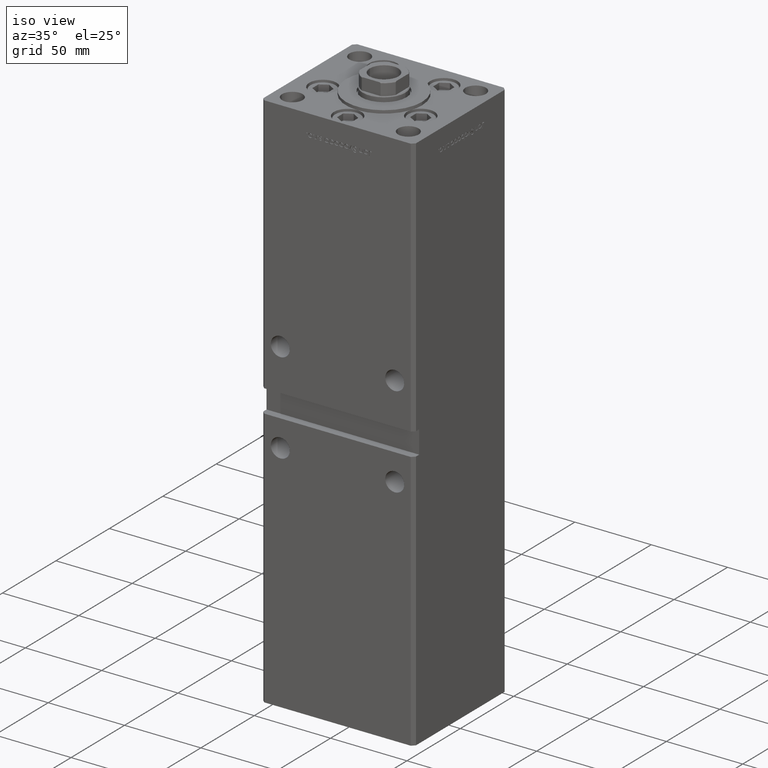
[diagram: clean part render]
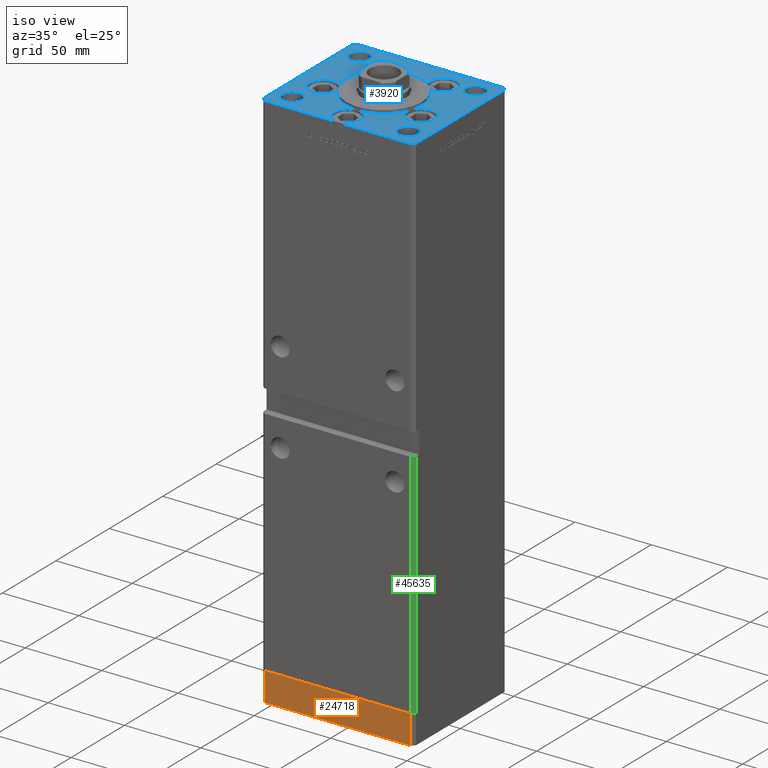
[diagram: same view with three faces highlighted in distinct colors, each labeled with its STEP entity id]
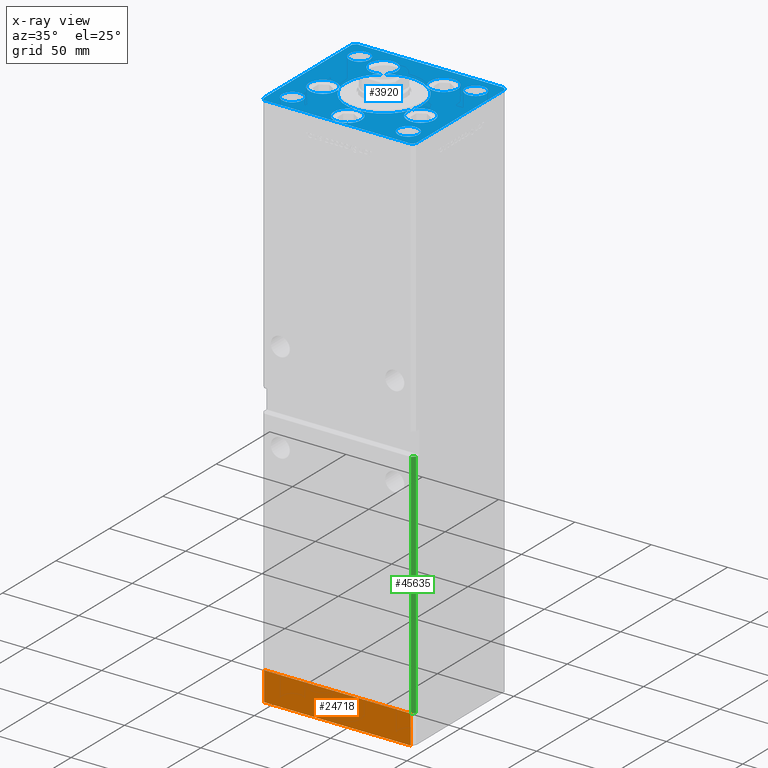
[diagram: x-ray of the same camera — body ghosted, the three highlighted faces saturated]
A machine part, iso view with three faces highlighted in distinct colors.
The next image is the same camera in x-ray (body ghosted, the three faces saturated) — at least one of them is partly hidden behind the body in this view.
Their STEP definitions:

[orange] entity #24718 — the highlighted planar face has unit normal (0, -1, -0).
#607 = VECTOR ( 'NONE', #42951, 1000.000000000000000 ) ;
#889 = VECTOR ( 'NONE', #1299, 1000.000000000000000 ) ;
#1299 = DIRECTION ( 'NONE',  ( 0.000000000000000000, 0.000000000000000000, 1.000000000000000000 ) ) ;
#2169 = CARTESIAN_POINT ( 'NONE',  ( -47.99999999999999289, -43.50000000000001421, -19.00000000000000000 ) ) ;
#2329 = DIRECTION ( 'NONE',  ( 0.000000000000000000, 0.000000000000000000, 1.000000000000000000 ) ) ;
#2706 = DIRECTION ( 'NONE',  ( 0.000000000000000000, -0.000000000000000000, -1.000000000000000000 ) ) ;
#4384 = VERTEX_POINT ( 'NONE', #30995 ) ;
#4978 = VERTEX_POINT ( 'NONE', #31591 ) ;
#6287 = EDGE_CURVE ( 'NONE', #43284, #40925, #39116, .T. ) ;
#6965 = CARTESIAN_POINT ( 'NONE',  ( -47.99999999999999289, -43.50000000000001421, 0.000000000000000000 ) ) ;
#8324 = VECTOR ( 'NONE', #20369, 1000.000000000000000 ) ;
#9655 = CARTESIAN_POINT ( 'NONE',  ( -47.99999999999999289, -43.50000000000001421, -19.00000000000000000 ) ) ;
#12457 = EDGE_CURVE ( 'NONE', #4384, #4978, #46414, .T. ) ;
#13043 = ORIENTED_EDGE ( 'NONE', *, *, #25767, .T. ) ;
#19844 = LINE ( 'NONE', #6965, #8324 ) ;
#20324 = AXIS2_PLACEMENT_3D ( 'NONE', #2169, #39498, #2706 ) ;
#20369 = DIRECTION ( 'NONE',  ( 1.000000000000000000, 0.000000000000000000, 0.000000000000000000 ) ) ;
#22161 = VECTOR ( 'NONE', #2329, 1000.000000000000000 ) ;
#22353 = FACE_OUTER_BOUND ( 'NONE', #33141, .T. ) ;
#24718 = ADVANCED_FACE ( 'NONE', ( #22353 ), #30664, .T. ) ;
#25767 = EDGE_CURVE ( 'NONE', #4384, #43284, #51289, .T. ) ;
#25867 = EDGE_CURVE ( 'NONE', #4978, #40925, #19844, .T. ) ;
#30664 = PLANE ( 'NONE',  #20324 ) ;
#30995 = CARTESIAN_POINT ( 'NONE',  ( -47.99999999999999289, -43.50000000000001421, -19.00000000000000000 ) ) ;
#31591 = CARTESIAN_POINT ( 'NONE',  ( -47.99999999999999289, -43.50000000000001421, 0.000000000000000000 ) ) ;
#32681 = ORIENTED_EDGE ( 'NONE', *, *, #6287, .T. ) ;
#33141 = EDGE_LOOP ( 'NONE', ( #40620, #36217, #13043, #32681 ) ) ;
#36217 = ORIENTED_EDGE ( 'NONE', *, *, #12457, .F. ) ;
#37908 = CARTESIAN_POINT ( 'NONE',  ( 47.99999999999999289, -43.50000000000001421, 0.000000000000000000 ) ) ;
#39116 = LINE ( 'NONE', #43155, #22161 ) ;
#39498 = DIRECTION ( 'NONE',  ( 0.000000000000000000, -1.000000000000000000, 0.000000000000000000 ) ) ;
#40620 = ORIENTED_EDGE ( 'NONE', *, *, #25867, .F. ) ;
#40925 = VERTEX_POINT ( 'NONE', #37908 ) ;
#42951 = DIRECTION ( 'NONE',  ( 1.000000000000000000, 0.000000000000000000, 0.000000000000000000 ) ) ;
#43155 = CARTESIAN_POINT ( 'NONE',  ( 47.99999999999999289, -43.50000000000001421, -19.00000000000000000 ) ) ;
#43284 = VERTEX_POINT ( 'NONE', #49249 ) ;
#46414 = LINE ( 'NONE', #9655, #889 ) ;
#47239 = CARTESIAN_POINT ( 'NONE',  ( -47.99999999999999289, -43.50000000000001421, -19.00000000000000000 ) ) ;
#49249 = CARTESIAN_POINT ( 'NONE',  ( 47.99999999999999289, -43.50000000000001421, -19.00000000000000000 ) ) ;
#51289 = LINE ( 'NONE', #47239, #607 ) ;

[blue] entity #3920 — the highlighted planar face has unit normal (0, 0, 1).
#344 = VERTEX_POINT ( 'NONE', #48858 ) ;
#379 = ORIENTED_EDGE ( 'NONE', *, *, #18493, .F. ) ;
#455 = VECTOR ( 'NONE', #24826, 1000.000000000000114 ) ;
#944 = DIRECTION ( 'NONE',  ( -1.000000000000000000, 0.000000000000000000, 0.000000000000000000 ) ) ;
#1230 = AXIS2_PLACEMENT_3D ( 'NONE', #40930, #4136, #36907 ) ;
#1635 = DIRECTION ( 'NONE',  ( 0.000000000000000000, 0.000000000000000000, 1.000000000000000000 ) ) ;
#1862 = CIRCLE ( 'NONE', #14727, 6.749999999999999112 ) ;
#2094 = DIRECTION ( 'NONE',  ( 1.000000000000000000, 1.156482317317871331E-15, 0.000000000000000000 ) ) ;
#2296 = AXIS2_PLACEMENT_3D ( 'NONE', #8044, #48326, #44563 ) ;
#2335 = EDGE_LOOP ( 'NONE', ( #52637, #31669 ) ) ;
#2369 = DIRECTION ( 'NONE',  ( 1.000000000000000000, 0.000000000000000000, 0.000000000000000000 ) ) ;
#2383 = EDGE_CURVE ( 'NONE', #6849, #37342, #50331, .T. ) ;
#2639 = FACE_BOUND ( 'NONE', #48498, .T. ) ;
#2659 = DIRECTION ( 'NONE',  ( 1.000000000000000000, 0.000000000000000000, 0.000000000000000000 ) ) ;
#2760 = EDGE_CURVE ( 'NONE', #46310, #8564, #41767, .T. ) ;
#2984 = AXIS2_PLACEMENT_3D ( 'NONE', #43667, #11192, #36146 ) ;
#3048 = EDGE_LOOP ( 'NONE', ( #50177, #36797, #5407, #46917, #9440, #45853, #13403, #30972 ) ) ;
#3114 = EDGE_CURVE ( 'NONE', #3707, #18404, #48621, .T. ) ;
#3148 = VERTEX_POINT ( 'NONE', #41571 ) ;
#3248 = VECTOR ( 'NONE', #26964, 1000.000000000000000 ) ;
#3374 = EDGE_CURVE ( 'NONE', #33976, #7527, #7459, .T. ) ;
#3707 = VERTEX_POINT ( 'NONE', #36496 ) ;
#3920 = ADVANCED_FACE ( 'NONE', ( #47224, #23864, #26826, #7471, #48278, #2639 ), #51540, .T. ) ;
#4043 = DIRECTION ( 'NONE',  ( 1.000000000000000000, 0.000000000000000000, 0.000000000000000000 ) ) ;
#4086 = VERTEX_POINT ( 'NONE', #49336 ) ;
#4132 = VERTEX_POINT ( 'NONE', #33515 ) ;
#4136 = DIRECTION ( 'NONE',  ( 0.000000000000000000, 0.000000000000000000, 1.000000000000000000 ) ) ;
#4247 = LINE ( 'NONE', #28168, #11902 ) ;
#5155 = DIRECTION ( 'NONE',  ( 1.000000000000000000, 0.000000000000000000, 0.000000000000000000 ) ) ;
#5224 = CIRCLE ( 'NONE', #24081, 9.000000000000000000 ) ;
#5407 = ORIENTED_EDGE ( 'NONE', *, *, #52080, .T. ) ;
#5499 = CARTESIAN_POINT ( 'NONE',  ( -38.00000000000000000, 31.50000000000000000, 0.000000000000000000 ) ) ;
#5675 = CARTESIAN_POINT ( 'NONE',  ( 32.05550741379015989, -11.33333333333332860, 0.000000000000000000 ) ) ;
#5771 = AXIS2_PLACEMENT_3D ( 'NONE', #9036, #28369, #21125 ) ;
#5942 = CARTESIAN_POINT ( 'NONE',  ( 50.00000000000000000, 41.50000000000000711, 0.000000000000000000 ) ) ;
#5973 = EDGE_CURVE ( 'NONE', #23836, #41104, #6568, .T. ) ;
#6098 = CARTESIAN_POINT ( 'NONE',  ( -32.05550741379015989, -11.33333333333332860, 0.000000000000000000 ) ) ;
#6144 = CARTESIAN_POINT ( 'NONE',  ( -48.00000000000000711, -43.50000000000002842, 0.000000000000000000 ) ) ;
#6259 = CARTESIAN_POINT ( 'NONE',  ( 25.00000000000000000, -3.877276906038844941E-15, 0.000000000000000000 ) ) ;
#6533 = AXIS2_PLACEMENT_3D ( 'NONE', #7860, #35786, #11099 ) ;
#6568 = LINE ( 'NONE', #48163, #8415 ) ;
#6612 = CARTESIAN_POINT ( 'NONE',  ( 0.000000000000000000, -6.938893903907228378E-15, 0.000000000000000000 ) ) ;
#6743 = ORIENTED_EDGE ( 'NONE', *, *, #32001, .F. ) ;
#6849 = VERTEX_POINT ( 'NONE', #42249 ) ;
#6880 = DIRECTION ( 'NONE',  ( 1.000000000000000000, 0.000000000000000000, 0.000000000000000000 ) ) ;
#7430 = DIRECTION ( 'NONE',  ( 1.000000000000000000, 0.000000000000000000, 0.000000000000000000 ) ) ;
#7459 = CIRCLE ( 'NONE', #5771, 6.749999999999999112 ) ;
#7471 = FACE_BOUND ( 'NONE', #2335, .T. ) ;
#7527 = VERTEX_POINT ( 'NONE', #11153 ) ;
#7715 = CARTESIAN_POINT ( 'NONE',  ( -19.82068048781374969, 27.62499999999998934, 0.000000000000000000 ) ) ;
#7791 = CARTESIAN_POINT ( 'NONE',  ( 41.05550741379015989, -11.33333333333332860, 0.000000000000000000 ) ) ;
#7860 = CARTESIAN_POINT ( 'NONE',  ( 0.000000000000000000, -6.938893903907228378E-15, 0.000000000000000000 ) ) ;
#8034 = CARTESIAN_POINT ( 'NONE',  ( 19.82068048781374969, 27.62499999999998934, 0.000000000000000000 ) ) ;
#8044 = CARTESIAN_POINT ( 'NONE',  ( 0.000000000000000000, -6.938893903907228378E-15, 0.000000000000000000 ) ) ;
#8278 = ORIENTED_EDGE ( 'NONE', *, *, #49906, .F. ) ;
#8291 = DIRECTION ( 'NONE',  ( 1.000000000000000000, 0.000000000000000000, 0.000000000000000000 ) ) ;
#8401 = AXIS2_PLACEMENT_3D ( 'NONE', #38248, #45764, #29134 ) ;
#8415 = VECTOR ( 'NONE', #22967, 1000.000000000000000 ) ;
#8564 = VERTEX_POINT ( 'NONE', #26686 ) ;
#8906 = CARTESIAN_POINT ( 'NONE',  ( 47.99999999999999289, 43.50000000000000000, 0.000000000000000000 ) ) ;
#8927 = EDGE_CURVE ( 'NONE', #33057, #16143, #9362, .T. ) ;
#9036 = CARTESIAN_POINT ( 'NONE',  ( 38.00000000000000000, 31.50000000000000000, 0.000000000000000000 ) ) ;
#9205 = AXIS2_PLACEMENT_3D ( 'NONE', #53164, #16881, #8291 ) ;
#9325 = CARTESIAN_POINT ( 'NONE',  ( 0.000000000000000000, -6.938893903907228378E-15, 0.000000000000000000 ) ) ;
#9362 = CIRCLE ( 'NONE', #46205, 9.000000000000001776 ) ;
#9440 = ORIENTED_EDGE ( 'NONE', *, *, #45243, .T. ) ;
#9467 = LINE ( 'NONE', #26097, #48322 ) ;
#9888 = VERTEX_POINT ( 'NONE', #15280 ) ;
#10308 = CIRCLE ( 'NONE', #40292, 8.999999999999998224 ) ;
#10437 = VECTOR ( 'NONE', #15589, 1000.000000000000000 ) ;
#10476 = DIRECTION ( 'NONE',  ( 0.000000000000000000, 0.000000000000000000, 1.000000000000000000 ) ) ;
#10483 = DIRECTION ( 'NONE',  ( -1.000000000000000000, 0.000000000000000000, 0.000000000000000000 ) ) ;
#10509 = CARTESIAN_POINT ( 'NONE',  ( -19.82068048781374969, 27.62499999999998934, 0.000000000000000000 ) ) ;
#11090 = CIRCLE ( 'NONE', #50554, 9.000000000000000000 ) ;
#11099 = DIRECTION ( 'NONE',  ( 1.000000000000000000, 0.000000000000000000, 0.000000000000000000 ) ) ;
#11153 = CARTESIAN_POINT ( 'NONE',  ( 44.75000000000000000, 31.50000000000000000, 0.000000000000000000 ) ) ;
#11192 = DIRECTION ( 'NONE',  ( -0.000000000000000000, -0.000000000000000000, -1.000000000000000000 ) ) ;
#11273 = VERTEX_POINT ( 'NONE', #47045 ) ;
#11402 = VERTEX_POINT ( 'NONE', #8906 ) ;
#11452 = LINE ( 'NONE', #11712, #29401 ) ;
#11572 = EDGE_CURVE ( 'NONE', #8564, #11273, #10308, .T. ) ;
#11712 = CARTESIAN_POINT ( 'NONE',  ( 50.00000000000000000, 41.50000000000000711, 0.000000000000000000 ) ) ;
#11743 = AXIS2_PLACEMENT_3D ( 'NONE', #23576, #15782, #40469 ) ;
#11902 = VECTOR ( 'NONE', #44801, 1000.000000000000000 ) ;
#11927 = DIRECTION ( 'NONE',  ( 0.000000000000000000, 0.000000000000000000, 1.000000000000000000 ) ) ;
#12009 = VERTEX_POINT ( 'NONE', #6259 ) ;
#12210 = CARTESIAN_POINT ( 'NONE',  ( 48.00000000000000711, -43.49999999999992184, 0.000000000000000000 ) ) ;
#12433 = CARTESIAN_POINT ( 'NONE',  ( 50.00000000000000000, -41.49999999999992895, 0.000000000000000000 ) ) ;
#12595 = DIRECTION ( 'NONE',  ( 0.000000000000000000, 0.000000000000000000, 1.000000000000000000 ) ) ;
#13100 = EDGE_CURVE ( 'NONE', #37342, #31369, #45455, .T. ) ;
#13187 = VERTEX_POINT ( 'NONE', #16118 ) ;
#13353 = CARTESIAN_POINT ( 'NONE',  ( 32.05550741379015989, -11.33333333333332860, 0.000000000000000000 ) ) ;
#13403 = ORIENTED_EDGE ( 'NONE', *, *, #37712, .T. ) ;
#13417 = EDGE_CURVE ( 'NONE', #13843, #4132, #27073, .T. ) ;
#13843 = VERTEX_POINT ( 'NONE', #20547 ) ;
#13862 = CIRCLE ( 'NONE', #47250, 25.00000000000000000 ) ;
#14206 = CIRCLE ( 'NONE', #21069, 25.00000000000000000 ) ;
#14482 = CARTESIAN_POINT ( 'NONE',  ( 0.000000000000000000, -6.938893903907228378E-15, 0.000000000000000000 ) ) ;
#14504 = AXIS2_PLACEMENT_3D ( 'NONE', #9325, #41252, #29179 ) ;
#14727 = AXIS2_PLACEMENT_3D ( 'NONE', #30887, #47249, #10483 ) ;
#14767 = CARTESIAN_POINT ( 'NONE',  ( -19.82068048781374969, 27.62499999999998934, 0.000000000000000000 ) ) ;
#14956 = CIRCLE ( 'NONE', #1230, 9.000000000000001776 ) ;
#15056 = LINE ( 'NONE', #44569, #10437 ) ;
#15248 = CARTESIAN_POINT ( 'NONE',  ( -25.00000000000000000, -6.938893903907228378E-15, 0.000000000000000000 ) ) ;
#15280 = CARTESIAN_POINT ( 'NONE',  ( -50.00000000000000000, -41.50000000000004263, 0.000000000000000000 ) ) ;
#15452 = EDGE_LOOP ( 'NONE', ( #28787, #28757 ) ) ;
#15589 = DIRECTION ( 'NONE',  ( -0.7071067811865536790, -0.7071067811865414665, 0.000000000000000000 ) ) ;
#15762 = DIRECTION ( 'NONE',  ( 0.000000000000000000, 0.000000000000000000, 1.000000000000000000 ) ) ;
#15782 = DIRECTION ( 'NONE',  ( 0.000000000000000000, 0.000000000000000000, 1.000000000000000000 ) ) ;
#15949 = EDGE_CURVE ( 'NONE', #23629, #3707, #24462, .T. ) ;
#16093 = EDGE_CURVE ( 'NONE', #3148, #32228, #19295, .T. ) ;
#16113 = CIRCLE ( 'NONE', #8401, 6.749999999999999112 ) ;
#16118 = CARTESIAN_POINT ( 'NONE',  ( -28.82068048781374969, 27.62499999999998934, 0.000000000000000000 ) ) ;
#16143 = VERTEX_POINT ( 'NONE', #37742 ) ;
#16359 = CARTESIAN_POINT ( 'NONE',  ( 10.82068048781375147, 27.62499999999998934, 0.000000000000000000 ) ) ;
#16881 = DIRECTION ( 'NONE',  ( 0.000000000000000000, 0.000000000000000000, 1.000000000000000000 ) ) ;
#16917 = AXIS2_PLACEMENT_3D ( 'NONE', #14482, #43192, #31912 ) ;
#16945 = ORIENTED_EDGE ( 'NONE', *, *, #39914, .T. ) ;
#17068 = DIRECTION ( 'NONE',  ( -0.000000000000000000, -0.000000000000000000, -1.000000000000000000 ) ) ;
#17217 = ORIENTED_EDGE ( 'NONE', *, *, #8927, .F. ) ;
#17409 = EDGE_CURVE ( 'NONE', #31369, #33057, #14206, .T. ) ;
#17878 = ORIENTED_EDGE ( 'NONE', *, *, #16093, .T. ) ;
#18036 = DIRECTION ( 'NONE',  ( 0.000000000000000000, 0.000000000000000000, 1.000000000000000000 ) ) ;
#18155 = DIRECTION ( 'NONE',  ( 0.000000000000000000, 0.000000000000000000, 1.000000000000000000 ) ) ;
#18404 = VERTEX_POINT ( 'NONE', #21679 ) ;
#18493 = EDGE_CURVE ( 'NONE', #12009, #8564, #29694, .T. ) ;
#18563 = CARTESIAN_POINT ( 'NONE',  ( -50.00000000000000711, 41.49999999999999289, 0.000000000000000000 ) ) ;
#18597 = CIRCLE ( 'NONE', #11743, 8.999999999999998224 ) ;
#18755 = AXIS2_PLACEMENT_3D ( 'NONE', #48243, #15762, #7430 ) ;
#19291 = DIRECTION ( 'NONE',  ( -0.000000000000000000, 0.000000000000000000, 1.000000000000000000 ) ) ;
#19295 = CIRCLE ( 'NONE', #2984, 6.749999999999999112 ) ;
#19776 = DIRECTION ( 'NONE',  ( -0.7071067811865512365, 0.7071067811865439090, 0.000000000000000000 ) ) ;
#19855 = CARTESIAN_POINT ( 'NONE',  ( 23.57022603955158502, -8.333333333333332149, 0.000000000000000000 ) ) ;
#19902 = CARTESIAN_POINT ( 'NONE',  ( -32.05550741379015989, -11.33333333333332860, 0.000000000000000000 ) ) ;
#20547 = CARTESIAN_POINT ( 'NONE',  ( -48.00000000000000711, -43.50000000000002842, 0.000000000000000000 ) ) ;
#20904 = EDGE_CURVE ( 'NONE', #33057, #12009, #50360, .T. ) ;
#20917 = VERTEX_POINT ( 'NONE', #7791 ) ;
#21069 = AXIS2_PLACEMENT_3D ( 'NONE', #22915, #30701, #30171 ) ;
#21125 = DIRECTION ( 'NONE',  ( 1.000000000000000000, 0.000000000000000000, 0.000000000000000000 ) ) ;
#21136 = CARTESIAN_POINT ( 'NONE',  ( 9.000000000000000000, -34.00000000000000000, 0.000000000000000000 ) ) ;
#21225 = CIRCLE ( 'NONE', #16917, 25.00000000000000000 ) ;
#21227 = EDGE_CURVE ( 'NONE', #11273, #46310, #18597, .T. ) ;
#21560 = ORIENTED_EDGE ( 'NONE', *, *, #13100, .F. ) ;
#21679 = CARTESIAN_POINT ( 'NONE',  ( -23.57022603955158502, -8.333333333333332149, 0.000000000000000000 ) ) ;
#22067 = CIRCLE ( 'NONE', #52075, 9.000000000000000000 ) ;
#22251 = VERTEX_POINT ( 'NONE', #18563 ) ;
#22492 = EDGE_CURVE ( 'NONE', #18404, #31369, #21225, .T. ) ;
#22819 = EDGE_CURVE ( 'NONE', #36107, #40301, #16113, .T. ) ;
#22915 = CARTESIAN_POINT ( 'NONE',  ( 0.000000000000000000, -6.938893903907228378E-15, 0.000000000000000000 ) ) ;
#22967 = DIRECTION ( 'NONE',  ( 0.000000000000000000, 1.000000000000000000, 0.000000000000000000 ) ) ;
#23174 = CARTESIAN_POINT ( 'NONE',  ( -44.75000000000000711, -31.50000000000000711, 0.000000000000000000 ) ) ;
#23304 = EDGE_LOOP ( 'NONE', ( #16945, #38046 ) ) ;
#23485 = DIRECTION ( 'NONE',  ( 1.000000000000000000, 0.000000000000000000, 0.000000000000000000 ) ) ;
#23525 = DIRECTION ( 'NONE',  ( 0.000000000000000000, 0.000000000000000000, 1.000000000000000000 ) ) ;
#23576 = CARTESIAN_POINT ( 'NONE',  ( 19.82068048781374969, 27.62499999999998934, 0.000000000000000000 ) ) ;
#23629 = VERTEX_POINT ( 'NONE', #30211 ) ;
#23717 = EDGE_CURVE ( 'NONE', #9888, #13843, #47619, .T. ) ;
#23836 = VERTEX_POINT ( 'NONE', #12433 ) ;
#23837 = DIRECTION ( 'NONE',  ( 1.000000000000000000, 0.000000000000000000, 0.000000000000000000 ) ) ;
#23864 = FACE_BOUND ( 'NONE', #23304, .T. ) ;
#23938 = DIRECTION ( 'NONE',  ( 0.000000000000000000, 0.000000000000000000, 1.000000000000000000 ) ) ;
#24081 = AXIS2_PLACEMENT_3D ( 'NONE', #50405, #18155, #29720 ) ;
#24462 = CIRCLE ( 'NONE', #25323, 9.000000000000001776 ) ;
#24804 = AXIS2_PLACEMENT_3D ( 'NONE', #13353, #29724, #49600 ) ;
#24826 = DIRECTION ( 'NONE',  ( 0.7071067811865474617, 0.7071067811865474617, 0.000000000000000000 ) ) ;
#25323 = AXIS2_PLACEMENT_3D ( 'NONE', #6098, #34307, #26246 ) ;
#25909 = CARTESIAN_POINT ( 'NONE',  ( 44.75000000000000711, -31.50000000000000711, 0.000000000000000000 ) ) ;
#26097 = CARTESIAN_POINT ( 'NONE',  ( -50.00000000000000711, 41.49999999999999289, 0.000000000000000000 ) ) ;
#26194 = AXIS2_PLACEMENT_3D ( 'NONE', #19902, #23938, #40290 ) ;
#26246 = DIRECTION ( 'NONE',  ( 1.000000000000000000, 0.000000000000000000, 0.000000000000000000 ) ) ;
#26341 = CARTESIAN_POINT ( 'NONE',  ( -31.25000000000000000, 31.50000000000000000, 0.000000000000000000 ) ) ;
#26349 = DIRECTION ( 'NONE',  ( 1.000000000000000000, 0.000000000000000000, 0.000000000000000000 ) ) ;
#26437 = EDGE_LOOP ( 'NONE', ( #50867, #28838, #34449, #29772, #379, #49555, #8278, #6743, #17217, #41627, #21560, #31917, #46654, #45881, #38399, #44565, #36188, #33799, #36717, #44489, #30425, #29494 ) ) ;
#26557 = EDGE_CURVE ( 'NONE', #13187, #28303, #22067, .T. ) ;
#26613 = AXIS2_PLACEMENT_3D ( 'NONE', #38806, #39337, #45604 ) ;
#26686 = CARTESIAN_POINT ( 'NONE',  ( 14.57402977045128623, 20.31249999999998579, 0.000000000000000000 ) ) ;
#26826 = FACE_BOUND ( 'NONE', #15452, .T. ) ;
#26964 = DIRECTION ( 'NONE',  ( 0.7071067811865487940, -0.7071067811865463515, 0.000000000000000000 ) ) ;
#27073 = LINE ( 'NONE', #6144, #45498 ) ;
#27258 = CIRCLE ( 'NONE', #34138, 9.000000000000000000 ) ;
#27750 = EDGE_CURVE ( 'NONE', #28303, #30830, #27258, .T. ) ;
#28168 = CARTESIAN_POINT ( 'NONE',  ( 47.99999999999999289, 43.50000000000000000, 0.000000000000000000 ) ) ;
#28303 = VERTEX_POINT ( 'NONE', #34549 ) ;
#28369 = DIRECTION ( 'NONE',  ( 0.000000000000000000, 0.000000000000000000, 1.000000000000000000 ) ) ;
#28757 = ORIENTED_EDGE ( 'NONE', *, *, #3374, .F. ) ;
#28787 = ORIENTED_EDGE ( 'NONE', *, *, #36042, .F. ) ;
#28819 = CARTESIAN_POINT ( 'NONE',  ( 0.000000000000000000, -34.00000000000000000, 0.000000000000000000 ) ) ;
#28838 = ORIENTED_EDGE ( 'NONE', *, *, #2760, .F. ) ;
#28991 = CARTESIAN_POINT ( 'NONE',  ( 0.000000000000000000, -34.00000000000000000, 0.000000000000000000 ) ) ;
#29060 = AXIS2_PLACEMENT_3D ( 'NONE', #32150, #31885, #23837 ) ;
#29134 = DIRECTION ( 'NONE',  ( 1.000000000000000000, 0.000000000000000000, 0.000000000000000000 ) ) ;
#29179 = DIRECTION ( 'NONE',  ( 1.000000000000000000, 0.000000000000000000, 0.000000000000000000 ) ) ;
#29401 = VECTOR ( 'NONE', #19776, 999.9999999999998863 ) ;
#29494 = ORIENTED_EDGE ( 'NONE', *, *, #27750, .F. ) ;
#29694 = CIRCLE ( 'NONE', #6533, 25.00000000000000000 ) ;
#29720 = DIRECTION ( 'NONE',  ( 1.000000000000000000, 0.000000000000000000, 0.000000000000000000 ) ) ;
#29724 = DIRECTION ( 'NONE',  ( 0.000000000000000000, 0.000000000000000000, 1.000000000000000000 ) ) ;
#29772 = ORIENTED_EDGE ( 'NONE', *, *, #11572, .F. ) ;
#30028 = EDGE_CURVE ( 'NONE', #11402, #344, #4247, .T. ) ;
#30171 = DIRECTION ( 'NONE',  ( 1.000000000000000000, 0.000000000000000000, 0.000000000000000000 ) ) ;
#30211 = CARTESIAN_POINT ( 'NONE',  ( -41.05550741379015989, -11.33333333333332682, 0.000000000000000000 ) ) ;
#30281 = EDGE_CURVE ( 'NONE', #37089, #18404, #50509, .T. ) ;
#30425 = ORIENTED_EDGE ( 'NONE', *, *, #31097, .F. ) ;
#30701 = DIRECTION ( 'NONE',  ( 0.000000000000000000, 0.000000000000000000, 1.000000000000000000 ) ) ;
#30830 = VERTEX_POINT ( 'NONE', #41050 ) ;
#30887 = CARTESIAN_POINT ( 'NONE',  ( 38.00000000000000711, -31.50000000000000711, 0.000000000000000000 ) ) ;
#30972 = ORIENTED_EDGE ( 'NONE', *, *, #48222, .T. ) ;
#31097 = EDGE_CURVE ( 'NONE', #30830, #13187, #11090, .T. ) ;
#31124 = EDGE_CURVE ( 'NONE', #40301, #36107, #39366, .T. ) ;
#31163 = EDGE_CURVE ( 'NONE', #28303, #37089, #41083, .T. ) ;
#31369 = VERTEX_POINT ( 'NONE', #32083 ) ;
#31409 = DIRECTION ( 'NONE',  ( -1.000000000000000000, 0.000000000000000000, 0.000000000000000000 ) ) ;
#31528 = CARTESIAN_POINT ( 'NONE',  ( -50.00000000000000000, -41.50000000000004263, 0.000000000000000000 ) ) ;
#31669 = ORIENTED_EDGE ( 'NONE', *, *, #31124, .F. ) ;
#31885 = DIRECTION ( 'NONE',  ( 0.000000000000000000, 0.000000000000000000, 1.000000000000000000 ) ) ;
#31912 = DIRECTION ( 'NONE',  ( 1.000000000000000000, 0.000000000000000000, 0.000000000000000000 ) ) ;
#31917 = ORIENTED_EDGE ( 'NONE', *, *, #2383, .F. ) ;
#32001 = EDGE_CURVE ( 'NONE', #16143, #20917, #47952, .T. ) ;
#32083 = CARTESIAN_POINT ( 'NONE',  ( 0.000000000000000000, -25.00000000000000000, 0.000000000000000000 ) ) ;
#32150 = CARTESIAN_POINT ( 'NONE',  ( -38.00000000000000711, -31.50000000000000711, 0.000000000000000000 ) ) ;
#32228 = VERTEX_POINT ( 'NONE', #25909 ) ;
#33057 = VERTEX_POINT ( 'NONE', #19855 ) ;
#33485 = CIRCLE ( 'NONE', #26613, 6.749999999999999112 ) ;
#33503 = AXIS2_PLACEMENT_3D ( 'NONE', #28991, #48872, #37041 ) ;
#33515 = CARTESIAN_POINT ( 'NONE',  ( 48.00000000000000711, -43.49999999999992184, 0.000000000000000000 ) ) ;
#33799 = ORIENTED_EDGE ( 'NONE', *, *, #30281, .F. ) ;
#33976 = VERTEX_POINT ( 'NONE', #53173 ) ;
#34138 = AXIS2_PLACEMENT_3D ( 'NONE', #10509, #1635, #26349 ) ;
#34307 = DIRECTION ( 'NONE',  ( 0.000000000000000000, 0.000000000000000000, 1.000000000000000000 ) ) ;
#34449 = ORIENTED_EDGE ( 'NONE', *, *, #21227, .F. ) ;
#34549 = CARTESIAN_POINT ( 'NONE',  ( -14.57402977045128978, 20.31249999999999289, 0.000000000000000000 ) ) ;
#35786 = DIRECTION ( 'NONE',  ( 0.000000000000000000, 0.000000000000000000, 1.000000000000000000 ) ) ;
#36026 = CARTESIAN_POINT ( 'NONE',  ( 19.82068048781374969, 27.62499999999998934, 0.000000000000000000 ) ) ;
#36042 = EDGE_CURVE ( 'NONE', #7527, #33976, #33485, .T. ) ;
#36107 = VERTEX_POINT ( 'NONE', #47643 ) ;
#36146 = DIRECTION ( 'NONE',  ( -1.000000000000000000, 0.000000000000000000, 0.000000000000000000 ) ) ;
#36188 = ORIENTED_EDGE ( 'NONE', *, *, #51220, .F. ) ;
#36496 = CARTESIAN_POINT ( 'NONE',  ( -23.05550741379015633, -11.33333333333332860, 0.000000000000000000 ) ) ;
#36712 = VERTEX_POINT ( 'NONE', #26341 ) ;
#36717 = ORIENTED_EDGE ( 'NONE', *, *, #31163, .F. ) ;
#36797 = ORIENTED_EDGE ( 'NONE', *, *, #13417, .T. ) ;
#36907 = DIRECTION ( 'NONE',  ( 1.000000000000000000, 0.000000000000000000, 0.000000000000000000 ) ) ;
#37016 = AXIS2_PLACEMENT_3D ( 'NONE', #51826, #48565, #31409 ) ;
#37041 = DIRECTION ( 'NONE',  ( 1.000000000000000000, 0.000000000000000000, 0.000000000000000000 ) ) ;
#37089 = VERTEX_POINT ( 'NONE', #15248 ) ;
#37161 = LINE ( 'NONE', #12210, #455 ) ;
#37327 = EDGE_CURVE ( 'NONE', #31369, #6849, #5224, .T. ) ;
#37342 = VERTEX_POINT ( 'NONE', #21136 ) ;
#37712 = EDGE_CURVE ( 'NONE', #344, #22251, #15056, .T. ) ;
#37742 = CARTESIAN_POINT ( 'NONE',  ( 23.05550741379015633, -11.33333333333332682, 0.000000000000000000 ) ) ;
#38046 = ORIENTED_EDGE ( 'NONE', *, *, #38304, .T. ) ;
#38248 = CARTESIAN_POINT ( 'NONE',  ( -38.00000000000000711, -31.50000000000000711, 0.000000000000000000 ) ) ;
#38304 = EDGE_CURVE ( 'NONE', #4086, #36712, #40429, .T. ) ;
#38399 = ORIENTED_EDGE ( 'NONE', *, *, #3114, .F. ) ;
#38806 = CARTESIAN_POINT ( 'NONE',  ( 38.00000000000000000, 31.50000000000000000, 0.000000000000000000 ) ) ;
#39157 = CARTESIAN_POINT ( 'NONE',  ( 0.000000000000000000, 0.000000000000000000, 0.000000000000000000 ) ) ;
#39337 = DIRECTION ( 'NONE',  ( 0.000000000000000000, 0.000000000000000000, 1.000000000000000000 ) ) ;
#39366 = CIRCLE ( 'NONE', #29060, 6.749999999999999112 ) ;
#39818 = EDGE_CURVE ( 'NONE', #32228, #3148, #1862, .T. ) ;
#39914 = EDGE_CURVE ( 'NONE', #36712, #4086, #45601, .T. ) ;
#40290 = DIRECTION ( 'NONE',  ( 1.000000000000000000, 0.000000000000000000, 0.000000000000000000 ) ) ;
#40292 = AXIS2_PLACEMENT_3D ( 'NONE', #8034, #12595, #44811 ) ;
#40301 = VERTEX_POINT ( 'NONE', #23174 ) ;
#40429 = CIRCLE ( 'NONE', #41283, 6.749999999999999112 ) ;
#40457 = DIRECTION ( 'NONE',  ( 1.000000000000000000, 0.000000000000000000, 0.000000000000000000 ) ) ;
#40469 = DIRECTION ( 'NONE',  ( 1.000000000000000000, 0.000000000000000000, 0.000000000000000000 ) ) ;
#40930 = CARTESIAN_POINT ( 'NONE',  ( 32.05550741379015989, -11.33333333333332860, 0.000000000000000000 ) ) ;
#41050 = CARTESIAN_POINT ( 'NONE',  ( -10.82068048781375147, 27.62499999999998934, 0.000000000000000000 ) ) ;
#41083 = CIRCLE ( 'NONE', #14504, 25.00000000000000000 ) ;
#41104 = VERTEX_POINT ( 'NONE', #5942 ) ;
#41252 = DIRECTION ( 'NONE',  ( 0.000000000000000000, 0.000000000000000000, 1.000000000000000000 ) ) ;
#41283 = AXIS2_PLACEMENT_3D ( 'NONE', #5499, #17068, #944 ) ;
#41571 = CARTESIAN_POINT ( 'NONE',  ( 31.25000000000000711, -31.50000000000000711, 0.000000000000000000 ) ) ;
#41627 = ORIENTED_EDGE ( 'NONE', *, *, #17409, .F. ) ;
#41767 = CIRCLE ( 'NONE', #52088, 8.999999999999998224 ) ;
#42249 = CARTESIAN_POINT ( 'NONE',  ( -9.000000000000000000, -34.00000000000000000, 0.000000000000000000 ) ) ;
#42368 = EDGE_CURVE ( 'NONE', #8564, #28303, #13862, .T. ) ;
#43192 = DIRECTION ( 'NONE',  ( 0.000000000000000000, 0.000000000000000000, 1.000000000000000000 ) ) ;
#43667 = CARTESIAN_POINT ( 'NONE',  ( 38.00000000000000711, -31.50000000000000711, 0.000000000000000000 ) ) ;
#44325 = AXIS2_PLACEMENT_3D ( 'NONE', #28819, #11927, #23485 ) ;
#44489 = ORIENTED_EDGE ( 'NONE', *, *, #26557, .F. ) ;
#44490 = DIRECTION ( 'NONE',  ( 0.000000000000000000, 0.000000000000000000, 1.000000000000000000 ) ) ;
#44563 = DIRECTION ( 'NONE',  ( 1.000000000000000000, 0.000000000000000000, 0.000000000000000000 ) ) ;
#44565 = ORIENTED_EDGE ( 'NONE', *, *, #15949, .F. ) ;
#44569 = CARTESIAN_POINT ( 'NONE',  ( -48.00000000000000000, 43.49999999999997158, 0.000000000000000000 ) ) ;
#44801 = DIRECTION ( 'NONE',  ( -1.000000000000000000, -2.891205793294678326E-16, 0.000000000000000000 ) ) ;
#44811 = DIRECTION ( 'NONE',  ( 1.000000000000000000, 0.000000000000000000, 0.000000000000000000 ) ) ;
#45243 = EDGE_CURVE ( 'NONE', #41104, #11402, #11452, .T. ) ;
#45455 = CIRCLE ( 'NONE', #33503, 9.000000000000000000 ) ;
#45498 = VECTOR ( 'NONE', #2094, 1000.000000000000000 ) ;
#45601 = CIRCLE ( 'NONE', #37016, 6.749999999999999112 ) ;
#45604 = DIRECTION ( 'NONE',  ( 1.000000000000000000, 0.000000000000000000, 0.000000000000000000 ) ) ;
#45764 = DIRECTION ( 'NONE',  ( 0.000000000000000000, 0.000000000000000000, 1.000000000000000000 ) ) ;
#45853 = ORIENTED_EDGE ( 'NONE', *, *, #30028, .T. ) ;
#45881 = ORIENTED_EDGE ( 'NONE', *, *, #22492, .F. ) ;
#45917 = ORIENTED_EDGE ( 'NONE', *, *, #39818, .T. ) ;
#46205 = AXIS2_PLACEMENT_3D ( 'NONE', #5675, #18036, #5155 ) ;
#46310 = VERTEX_POINT ( 'NONE', #16359 ) ;
#46654 = ORIENTED_EDGE ( 'NONE', *, *, #37327, .F. ) ;
#46917 = ORIENTED_EDGE ( 'NONE', *, *, #5973, .T. ) ;
#47045 = CARTESIAN_POINT ( 'NONE',  ( 28.82068048781374969, 27.62499999999998934, 0.000000000000000000 ) ) ;
#47224 = FACE_BOUND ( 'NONE', #26437, .T. ) ;
#47249 = DIRECTION ( 'NONE',  ( -0.000000000000000000, -0.000000000000000000, -1.000000000000000000 ) ) ;
#47250 = AXIS2_PLACEMENT_3D ( 'NONE', #6612, #23525, #6880 ) ;
#47619 = LINE ( 'NONE', #31528, #3248 ) ;
#47643 = CARTESIAN_POINT ( 'NONE',  ( -31.25000000000000711, -31.50000000000000711, 0.000000000000000000 ) ) ;
#47952 = CIRCLE ( 'NONE', #24804, 9.000000000000001776 ) ;
#48163 = CARTESIAN_POINT ( 'NONE',  ( 50.00000000000000000, -41.49999999999992895, 0.000000000000000000 ) ) ;
#48222 = EDGE_CURVE ( 'NONE', #22251, #9888, #9467, .T. ) ;
#48243 = CARTESIAN_POINT ( 'NONE',  ( 0.000000000000000000, -6.938893903907228378E-15, 0.000000000000000000 ) ) ;
#48278 = FACE_OUTER_BOUND ( 'NONE', #3048, .T. ) ;
#48322 = VECTOR ( 'NONE', #50546, 1000.000000000000000 ) ;
#48326 = DIRECTION ( 'NONE',  ( 0.000000000000000000, 0.000000000000000000, 1.000000000000000000 ) ) ;
#48498 = EDGE_LOOP ( 'NONE', ( #45917, #17878 ) ) ;
#48565 = DIRECTION ( 'NONE',  ( -0.000000000000000000, -0.000000000000000000, -1.000000000000000000 ) ) ;
#48621 = CIRCLE ( 'NONE', #9205, 9.000000000000001776 ) ;
#48858 = CARTESIAN_POINT ( 'NONE',  ( -48.00000000000000000, 43.49999999999997158, 0.000000000000000000 ) ) ;
#48872 = DIRECTION ( 'NONE',  ( 0.000000000000000000, 0.000000000000000000, 1.000000000000000000 ) ) ;
#49336 = CARTESIAN_POINT ( 'NONE',  ( -44.75000000000000000, 31.50000000000000000, 0.000000000000000000 ) ) ;
#49555 = ORIENTED_EDGE ( 'NONE', *, *, #20904, .F. ) ;
#49600 = DIRECTION ( 'NONE',  ( 1.000000000000000000, 0.000000000000000000, 0.000000000000000000 ) ) ;
#49906 = EDGE_CURVE ( 'NONE', #20917, #33057, #14956, .T. ) ;
#50177 = ORIENTED_EDGE ( 'NONE', *, *, #23717, .T. ) ;
#50331 = CIRCLE ( 'NONE', #44325, 9.000000000000000000 ) ;
#50360 = CIRCLE ( 'NONE', #2296, 25.00000000000000000 ) ;
#50405 = CARTESIAN_POINT ( 'NONE',  ( 0.000000000000000000, -34.00000000000000000, 0.000000000000000000 ) ) ;
#50414 = AXIS2_PLACEMENT_3D ( 'NONE', #39157, #19291, #2369 ) ;
#50509 = CIRCLE ( 'NONE', #18755, 25.00000000000000000 ) ;
#50546 = DIRECTION ( 'NONE',  ( 8.360113137237620037E-17, -1.000000000000000000, 0.000000000000000000 ) ) ;
#50554 = AXIS2_PLACEMENT_3D ( 'NONE', #7715, #44490, #40457 ) ;
#50867 = ORIENTED_EDGE ( 'NONE', *, *, #42368, .F. ) ;
#51220 = EDGE_CURVE ( 'NONE', #18404, #23629, #52811, .T. ) ;
#51540 = PLANE ( 'NONE',  #50414 ) ;
#51826 = CARTESIAN_POINT ( 'NONE',  ( -38.00000000000000000, 31.50000000000000000, 0.000000000000000000 ) ) ;
#52075 = AXIS2_PLACEMENT_3D ( 'NONE', #14767, #10476, #2659 ) ;
#52080 = EDGE_CURVE ( 'NONE', #4132, #23836, #37161, .T. ) ;
#52088 = AXIS2_PLACEMENT_3D ( 'NONE', #36026, #52961, #4043 ) ;
#52637 = ORIENTED_EDGE ( 'NONE', *, *, #22819, .F. ) ;
#52811 = CIRCLE ( 'NONE', #26194, 9.000000000000001776 ) ;
#52961 = DIRECTION ( 'NONE',  ( 0.000000000000000000, 0.000000000000000000, 1.000000000000000000 ) ) ;
#53164 = CARTESIAN_POINT ( 'NONE',  ( -32.05550741379015989, -11.33333333333332860, 0.000000000000000000 ) ) ;
#53173 = CARTESIAN_POINT ( 'NONE',  ( 31.25000000000000000, 31.50000000000000000, 0.000000000000000000 ) ) ;

[green] entity #45635 — the highlighted planar face has unit normal (0.7071, -0.7071, 0).
#4 = CARTESIAN_POINT ( 'NONE',  ( 50.00000000000000000, -41.49999999999999289, 152.0000000000000000 ) ) ;
#1098 = LINE ( 'NONE', #5394, #3284 ) ;
#3284 = VECTOR ( 'NONE', #21797, 1000.000000000000000 ) ;
#4098 = CARTESIAN_POINT ( 'NONE',  ( 49.99999999999998579, -41.49999999999999289, 318.5000000000000000 ) ) ;
#5394 = CARTESIAN_POINT ( 'NONE',  ( 47.99999999999998579, -43.50000000000000000, 318.5000000000000000 ) ) ;
#5868 = VECTOR ( 'NONE', #50387, 1000.000000000000114 ) ;
#6273 = VERTEX_POINT ( 'NONE', #21723 ) ;
#7084 = EDGE_CURVE ( 'NONE', #25607, #29399, #28248, .T. ) ;
#7316 = LINE ( 'NONE', #39795, #36739 ) ;
#7818 = EDGE_CURVE ( 'NONE', #29399, #6273, #7316, .T. ) ;
#7888 = DIRECTION ( 'NONE',  ( 0.7071067811865474617, 0.7071067811865474617, 0.000000000000000000 ) ) ;
#11033 = VECTOR ( 'NONE', #20993, 1000.000000000000000 ) ;
#12224 = ORIENTED_EDGE ( 'NONE', *, *, #7084, .F. ) ;
#12521 = CARTESIAN_POINT ( 'NONE',  ( 49.99999999999998579, -41.49999999999999289, 152.0000000000000000 ) ) ;
#13971 = AXIS2_PLACEMENT_3D ( 'NONE', #4098, #36340, #7888 ) ;
#18020 = ORIENTED_EDGE ( 'NONE', *, *, #7818, .F. ) ;
#19975 = PLANE ( 'NONE',  #13971 ) ;
#20993 = DIRECTION ( 'NONE',  ( -0.000000000000000000, -0.000000000000000000, -1.000000000000000000 ) ) ;
#21723 = CARTESIAN_POINT ( 'NONE',  ( 47.99999999999998579, -43.50000000000000000, 0.000000000000000000 ) ) ;
#21797 = DIRECTION ( 'NONE',  ( -0.000000000000000000, -0.000000000000000000, -1.000000000000000000 ) ) ;
#23707 = DIRECTION ( 'NONE',  ( -0.7071067811865474617, -0.7071067811865474617, 0.000000000000000000 ) ) ;
#25607 = VERTEX_POINT ( 'NONE', #4 ) ;
#28248 = LINE ( 'NONE', #32813, #11033 ) ;
#29399 = VERTEX_POINT ( 'NONE', #49010 ) ;
#30361 = EDGE_CURVE ( 'NONE', #39645, #25607, #34002, .T. ) ;
#30755 = EDGE_CURVE ( 'NONE', #39645, #6273, #1098, .T. ) ;
#32801 = CARTESIAN_POINT ( 'NONE',  ( 47.99999999999995737, -43.50000000000000000, 152.0000000000000000 ) ) ;
#32813 = CARTESIAN_POINT ( 'NONE',  ( 49.99999999999998579, -41.49999999999999289, 318.5000000000000000 ) ) ;
#34002 = LINE ( 'NONE', #12521, #5868 ) ;
#36340 = DIRECTION ( 'NONE',  ( 0.7071067811865475727, -0.7071067811865475727, 0.000000000000000000 ) ) ;
#36739 = VECTOR ( 'NONE', #23707, 1000.000000000000114 ) ;
#37386 = ORIENTED_EDGE ( 'NONE', *, *, #30361, .F. ) ;
#38604 = ORIENTED_EDGE ( 'NONE', *, *, #30755, .T. ) ;
#39645 = VERTEX_POINT ( 'NONE', #32801 ) ;
#39795 = CARTESIAN_POINT ( 'NONE',  ( 49.99999999999998579, -41.49999999999999289, 0.000000000000000000 ) ) ;
#45635 = ADVANCED_FACE ( 'NONE', ( #49220 ), #19975, .T. ) ;
#48897 = EDGE_LOOP ( 'NONE', ( #37386, #38604, #18020, #12224 ) ) ;
#49010 = CARTESIAN_POINT ( 'NONE',  ( 49.99999999999998579, -41.49999999999999289, 0.000000000000000000 ) ) ;
#49220 = FACE_OUTER_BOUND ( 'NONE', #48897, .T. ) ;
#50387 = DIRECTION ( 'NONE',  ( 0.7071067811865474617, 0.7071067811865474617, 0.000000000000000000 ) ) ;